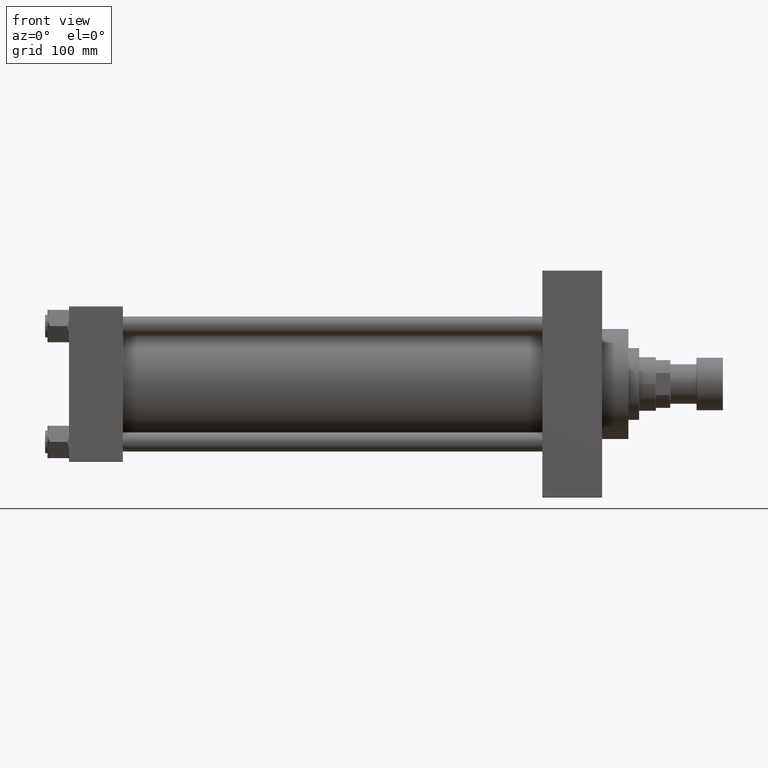
[diagram: clean part render]
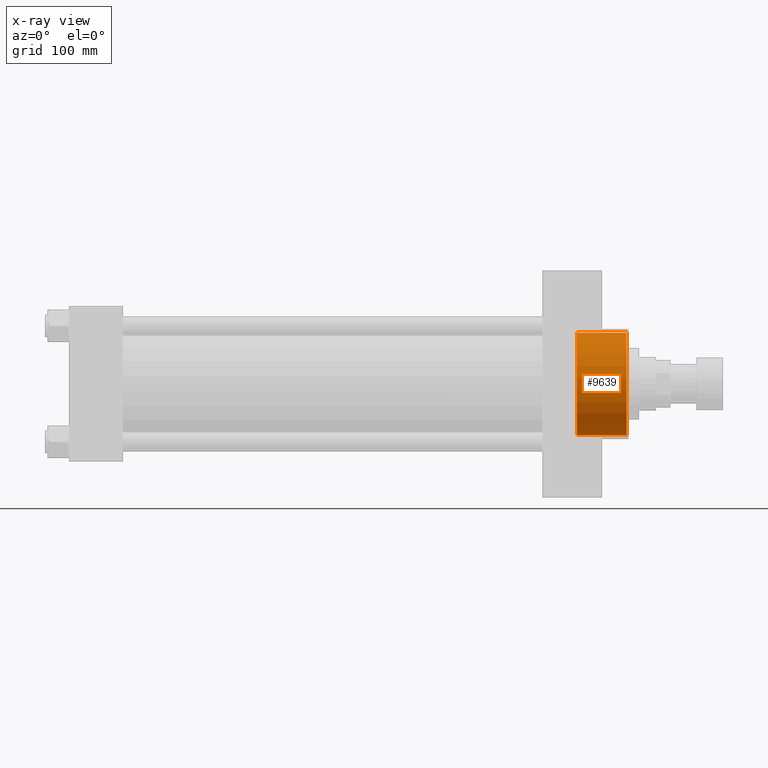
[diagram: x-ray — body ghosted, one internal face saturated and labeled with its STEP entity id]
A machine part, front view, then the same camera in x-ray: the body is ghosted and one INTERNAL B-rep face — a face not visible from any outside direction — is saturated and labeled: STEP entity #9639.
In plain terms, the highlighted cylindrical surface (partial cylindrical patch) has radius 42.75 mm, axis along (1, 0, 0).
Its self-contained STEP definition (entity closure, byte-faithful):
#740 = CYLINDRICAL_SURFACE ( 'NONE', #1208, 42.75000000000000000 ) ;
#1208 = AXIS2_PLACEMENT_3D ( 'NONE', #23224, #38133, #37399 ) ;
#1308 = ORIENTED_EDGE ( 'NONE', *, *, #8454, .T. ) ;
#1313 = AXIS2_PLACEMENT_3D ( 'NONE', #10032, #24915, #32497 ) ;
#1763 = DIRECTION ( 'NONE',  ( 1.000000000000000000, -0.000000000000000000, -0.000000000000000000 ) ) ;
#2878 = DIRECTION ( 'NONE',  ( 1.000000000000000000, -0.000000000000000000, -0.000000000000000000 ) ) ;
#4102 = EDGE_LOOP ( 'NONE', ( #13372, #46243, #1308, #34630 ) ) ;
#4986 = EDGE_CURVE ( 'NONE', #41872, #14051, #36357, .T. ) ;
#5080 = AXIS2_PLACEMENT_3D ( 'NONE', #14431, #47412, #29315 ) ;
#5190 = LINE ( 'NONE', #24238, #32416 ) ;
#8454 = EDGE_CURVE ( 'NONE', #45807, #14051, #14462, .T. ) ;
#9639 = ADVANCED_FACE ( 'NONE', ( #30806 ), #740, .F. ) ;
#10032 = CARTESIAN_POINT ( 'NONE',  ( 424.7399999999999523, 0.000000000000000000, 0.000000000000000000 ) ) ;
#12878 = EDGE_CURVE ( 'NONE', #40317, #41872, #22365, .T. ) ;
#13372 = ORIENTED_EDGE ( 'NONE', *, *, #12878, .F. ) ;
#14051 = VERTEX_POINT ( 'NONE', #42732 ) ;
#14431 = CARTESIAN_POINT ( 'NONE',  ( 466.4999999999998863, 0.000000000000000000, 0.000000000000000000 ) ) ;
#14462 = CIRCLE ( 'NONE', #5080, 42.75000000000000000 ) ;
#16036 = CARTESIAN_POINT ( 'NONE',  ( 466.4999999999998863, 5.235365066354935472E-15, 42.75000000000000000 ) ) ;
#17555 = CARTESIAN_POINT ( 'NONE',  ( 424.7399999999999523, 0.000000000000000000, -42.75000000000000000 ) ) ;
#22365 = CIRCLE ( 'NONE', #1313, 42.75000000000000000 ) ;
#23224 = CARTESIAN_POINT ( 'NONE',  ( 424.7399999999999523, 0.000000000000000000, 0.000000000000000000 ) ) ;
#24238 = CARTESIAN_POINT ( 'NONE',  ( 424.7399999999999523, 5.235365066354935472E-15, 42.75000000000000000 ) ) ;
#24915 = DIRECTION ( 'NONE',  ( 1.000000000000000000, 0.000000000000000000, 0.000000000000000000 ) ) ;
#29315 = DIRECTION ( 'NONE',  ( 0.000000000000000000, 0.000000000000000000, -1.000000000000000000 ) ) ;
#30806 = FACE_OUTER_BOUND ( 'NONE', #4102, .T. ) ;
#32416 = VECTOR ( 'NONE', #1763, 1000.000000000000000 ) ;
#32497 = DIRECTION ( 'NONE',  ( 0.000000000000000000, 0.000000000000000000, -1.000000000000000000 ) ) ;
#32526 = CARTESIAN_POINT ( 'NONE',  ( 424.7399999999999523, 0.000000000000000000, -42.75000000000000000 ) ) ;
#34630 = ORIENTED_EDGE ( 'NONE', *, *, #4986, .F. ) ;
#36179 = VECTOR ( 'NONE', #2878, 1000.000000000000000 ) ;
#36357 = LINE ( 'NONE', #17555, #36179 ) ;
#37399 = DIRECTION ( 'NONE',  ( 0.000000000000000000, 0.000000000000000000, -1.000000000000000000 ) ) ;
#38133 = DIRECTION ( 'NONE',  ( 1.000000000000000000, -0.000000000000000000, -0.000000000000000000 ) ) ;
#40317 = VERTEX_POINT ( 'NONE', #43003 ) ;
#41872 = VERTEX_POINT ( 'NONE', #32526 ) ;
#42732 = CARTESIAN_POINT ( 'NONE',  ( 466.4999999999998863, 0.000000000000000000, -42.75000000000000000 ) ) ;
#43003 = CARTESIAN_POINT ( 'NONE',  ( 424.7399999999999523, 5.235365066354935472E-15, 42.75000000000000000 ) ) ;
#45349 = EDGE_CURVE ( 'NONE', #40317, #45807, #5190, .T. ) ;
#45807 = VERTEX_POINT ( 'NONE', #16036 ) ;
#46243 = ORIENTED_EDGE ( 'NONE', *, *, #45349, .T. ) ;
#47412 = DIRECTION ( 'NONE',  ( 1.000000000000000000, 0.000000000000000000, 0.000000000000000000 ) ) ;